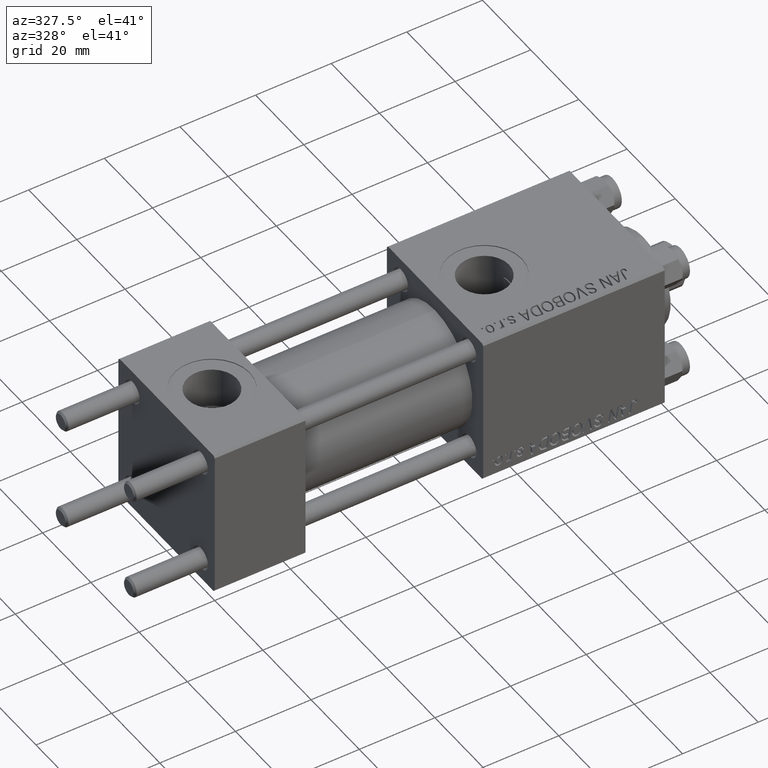
[diagram: clean part render]
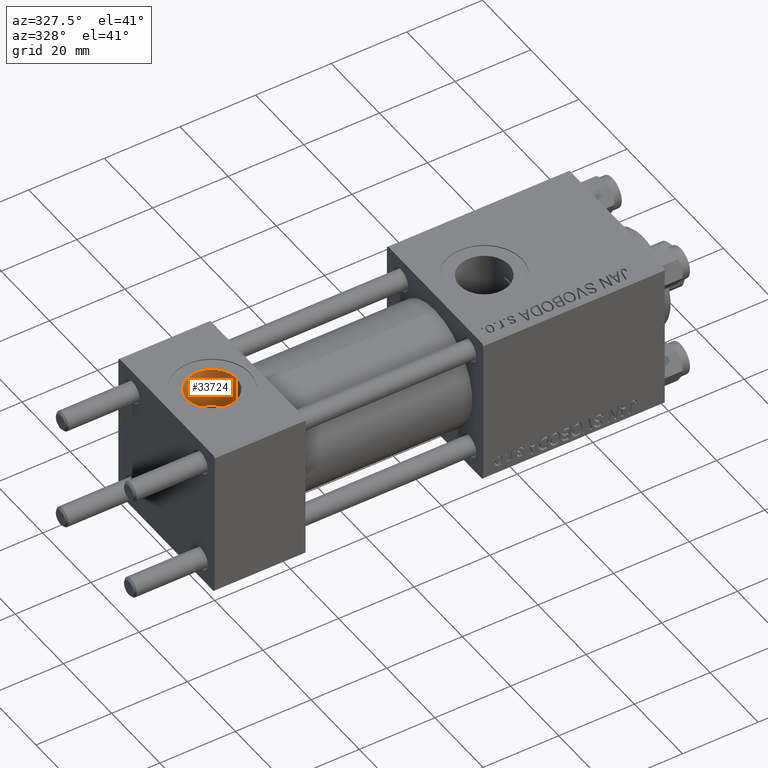
[diagram: same view with one face highlighted and labeled with its STEP entity id]
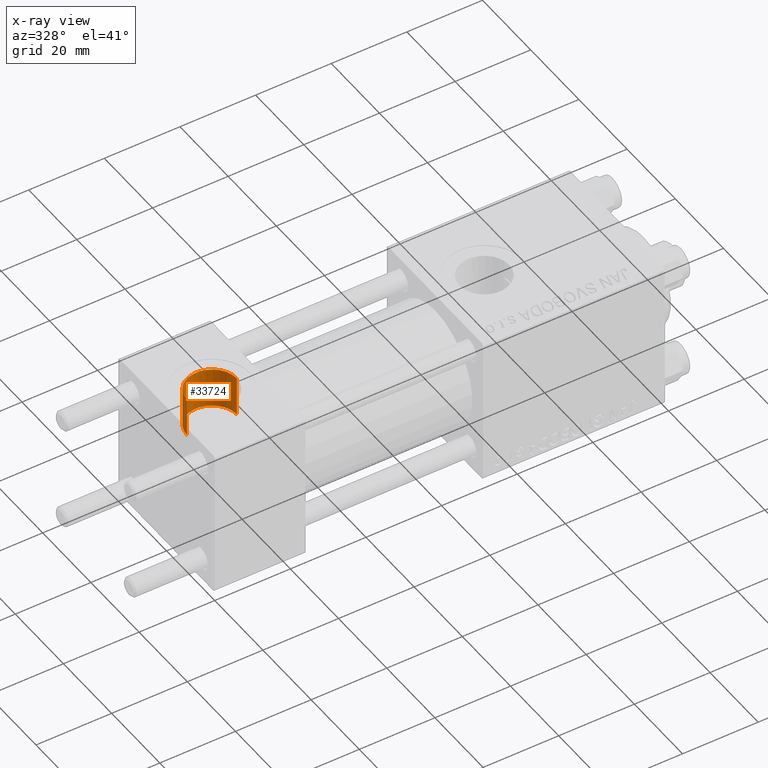
[diagram: x-ray of the same camera — body ghosted, the highlighted face saturated]
A machine part, auxiliary view. The second image highlights one B-rep face of the part: STEP entity #33724.
The next image is the same camera in x-ray: the body ghosted, the highlighted face saturated — about 0% of this face is hidden behind the body in this view.
In plain terms, the highlighted cylindrical surface (edge-blend (fillet) strip) has radius 6.58 mm, axis along (0, 0, 1).
Its self-contained STEP definition (entity closure, byte-faithful):
#1187 = CARTESIAN_POINT ( 'NONE',  ( 18.57999999999999829, 1.540743955509788682E-30, 9.199999999999995737 ) ) ;
#3908 = AXIS2_PLACEMENT_3D ( 'NONE', #7411, #28056, #22822 ) ;
#7411 = CARTESIAN_POINT ( 'NONE',  ( 12.00000000000000000, 1.540743955509788682E-30, 9.199999999999995737 ) ) ;
#7433 = DIRECTION ( 'NONE',  ( -0.000000000000000000, -0.000000000000000000, -1.000000000000000000 ) ) ;
#8442 = VERTEX_POINT ( 'NONE', #40488 ) ;
#8520 = CARTESIAN_POINT ( 'NONE',  ( 5.420000000000000817, 8.058175938389596335E-16, 9.165987261146492315 ) ) ;
#10637 = CARTESIAN_POINT ( 'NONE',  ( 12.00000000000000000, 1.540743955509788682E-30, 19.79999999999999716 ) ) ;
#11731 = DIRECTION ( 'NONE',  ( 1.000000000000000000, 0.000000000000000000, 0.000000000000000000 ) ) ;
#12341 = ORIENTED_EDGE ( 'NONE', *, *, #33766, .F. ) ;
#14401 = VECTOR ( 'NONE', #48185, 1000.000000000000000 ) ;
#14925 = CIRCLE ( 'NONE', #28183, 6.579999999999999183 ) ;
#18737 = DIRECTION ( 'NONE',  ( 1.000000000000000000, 0.000000000000000000, 0.000000000000000000 ) ) ;
#19322 = CARTESIAN_POINT ( 'NONE',  ( 12.00000000000000000, 1.540743955509788682E-30, 9.165987261146492315 ) ) ;
#20885 = DIRECTION ( 'NONE',  ( -0.000000000000000000, -0.000000000000000000, 1.000000000000000000 ) ) ;
#22822 = DIRECTION ( 'NONE',  ( 1.000000000000000000, 0.000000000000000000, 0.000000000000000000 ) ) ;
#27247 = EDGE_CURVE ( 'NONE', #8442, #48120, #14925, .T. ) ;
#28056 = DIRECTION ( 'NONE',  ( -0.000000000000000000, -0.000000000000000000, 1.000000000000000000 ) ) ;
#28183 = AXIS2_PLACEMENT_3D ( 'NONE', #10637, #45970, #18737 ) ;
#29550 = VERTEX_POINT ( 'NONE', #49132 ) ;
#31950 = CARTESIAN_POINT ( 'NONE',  ( 5.420000000000000817, 8.058175938389596335E-16, 19.79999999999999716 ) ) ;
#32794 = CARTESIAN_POINT ( 'NONE',  ( 5.420000000000000817, 8.058175938389596335E-16, 9.199999999999995737 ) ) ;
#33473 = ORIENTED_EDGE ( 'NONE', *, *, #36964, .T. ) ;
#33724 = ADVANCED_FACE ( 'NONE', ( #43188 ), #41986, .F. ) ;
#33766 = EDGE_CURVE ( 'NONE', #37895, #48120, #36582, .T. ) ;
#35198 = EDGE_LOOP ( 'NONE', ( #12341, #33473, #36324, #37971 ) ) ;
#36266 = CIRCLE ( 'NONE', #42737, 6.579999999999999183 ) ;
#36324 = ORIENTED_EDGE ( 'NONE', *, *, #40402, .T. ) ;
#36582 = LINE ( 'NONE', #32794, #14401 ) ;
#36964 = EDGE_CURVE ( 'NONE', #37895, #29550, #36266, .T. ) ;
#37895 = VERTEX_POINT ( 'NONE', #8520 ) ;
#37971 = ORIENTED_EDGE ( 'NONE', *, *, #27247, .T. ) ;
#40402 = EDGE_CURVE ( 'NONE', #29550, #8442, #47398, .T. ) ;
#40488 = CARTESIAN_POINT ( 'NONE',  ( 18.57999999999999829, 1.540743955509788682E-30, 19.79999999999999716 ) ) ;
#41986 = CYLINDRICAL_SURFACE ( 'NONE', #3908, 6.579999999999999183 ) ;
#42737 = AXIS2_PLACEMENT_3D ( 'NONE', #19322, #7433, #11731 ) ;
#43188 = FACE_OUTER_BOUND ( 'NONE', #35198, .T. ) ;
#45970 = DIRECTION ( 'NONE',  ( 0.000000000000000000, 0.000000000000000000, 1.000000000000000000 ) ) ;
#47398 = LINE ( 'NONE', #1187, #48371 ) ;
#48120 = VERTEX_POINT ( 'NONE', #31950 ) ;
#48185 = DIRECTION ( 'NONE',  ( -0.000000000000000000, -0.000000000000000000, 1.000000000000000000 ) ) ;
#48371 = VECTOR ( 'NONE', #20885, 1000.000000000000000 ) ;
#49132 = CARTESIAN_POINT ( 'NONE',  ( 18.57999999999999829, 1.540743955509788682E-30, 9.165987261146492315 ) ) ;